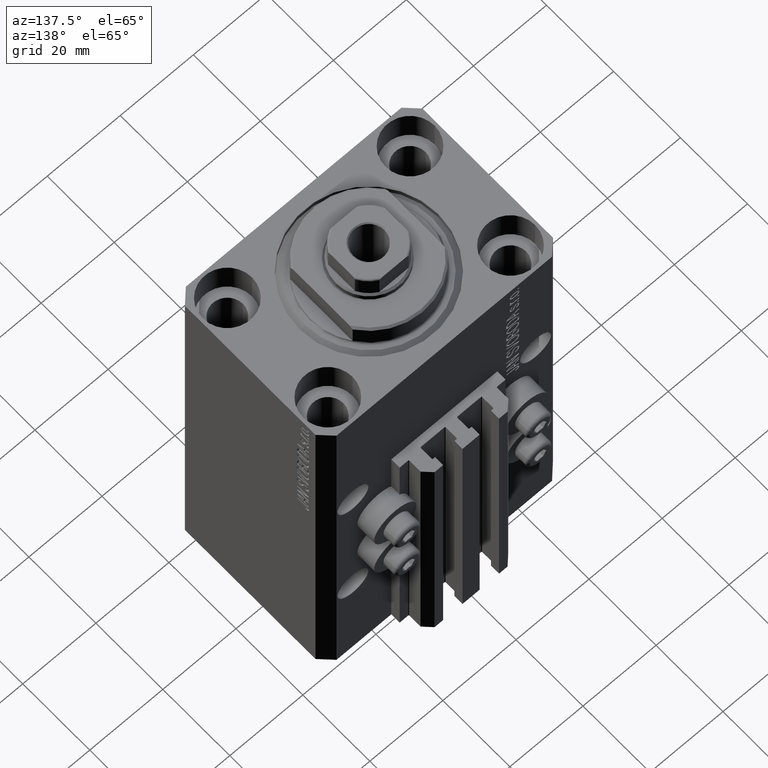
[diagram: clean part render]
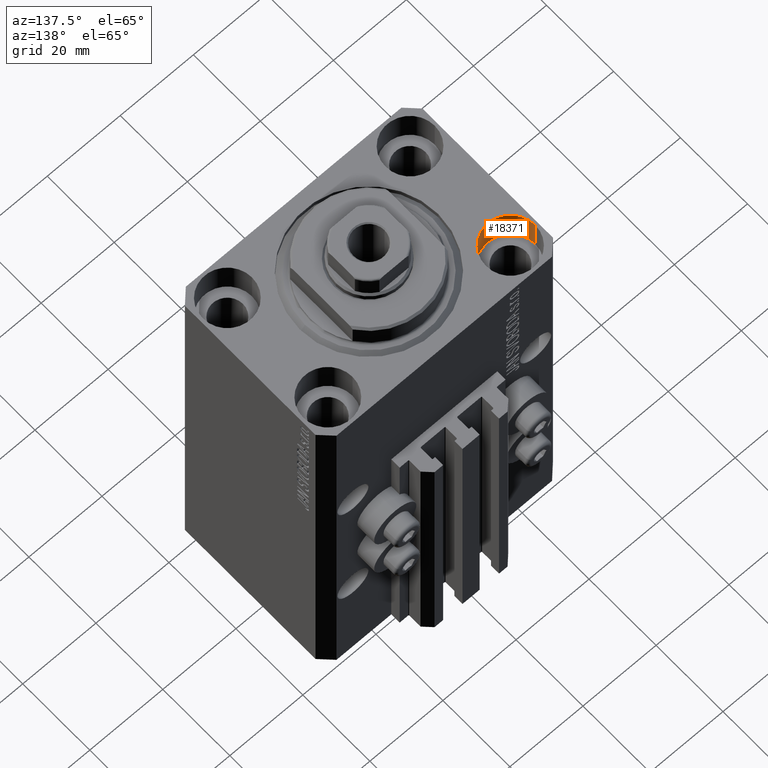
[diagram: same view with one face highlighted and labeled with its STEP entity id]
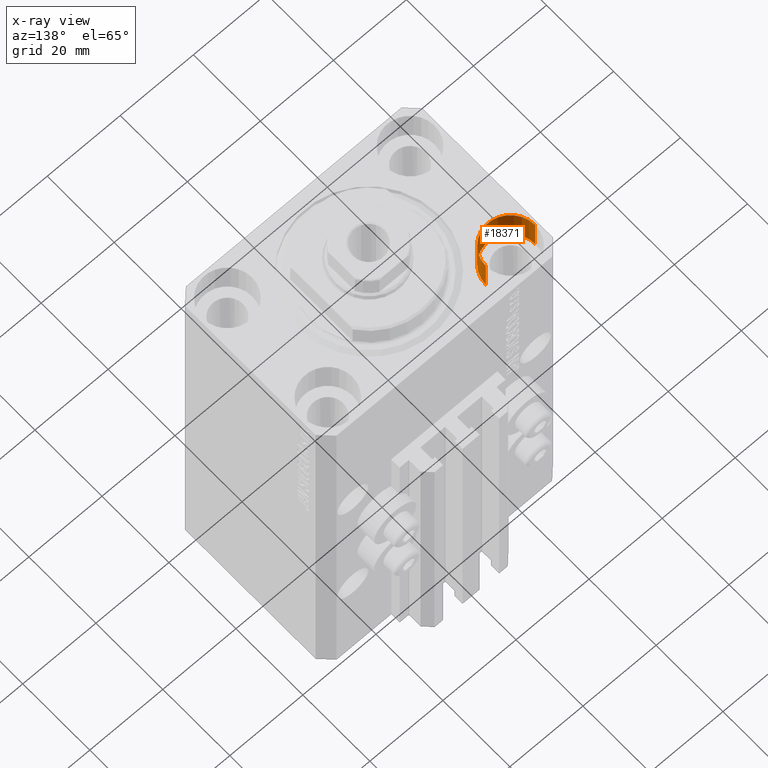
[diagram: x-ray of the same camera — body ghosted, the highlighted face saturated]
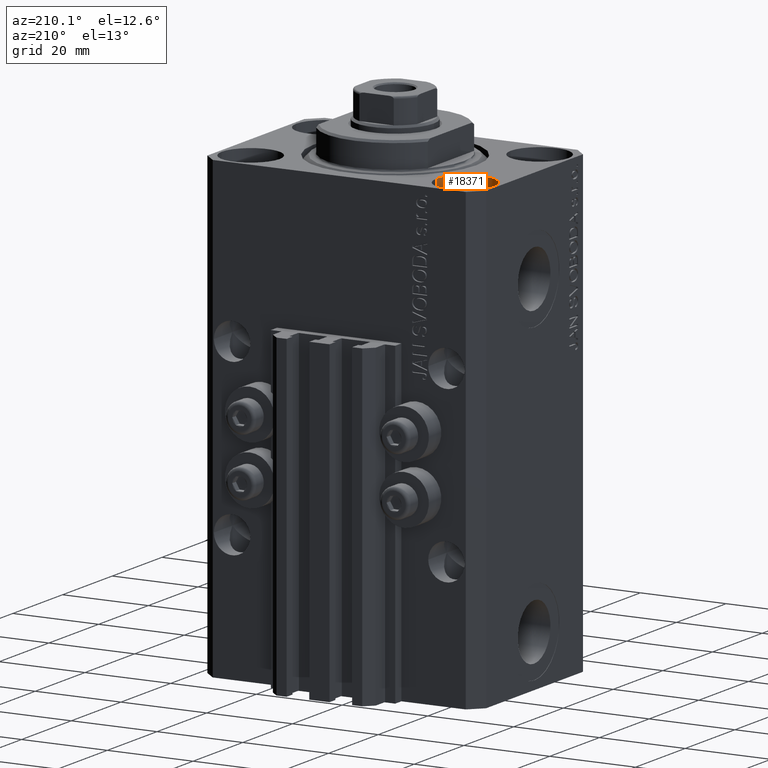
[diagram: same view with one face highlighted and labeled with its STEP entity id]
A machine part, auxiliary view. The second image highlights one B-rep face of the part: STEP entity #18371.
The next image is the same camera in x-ray: the body ghosted, the highlighted face saturated — about 0% of this face is hidden behind the body in this view.
A second angle (auxiliary view) of the same face is appended — the face is thin or edge-on in the first view.
In plain terms, the highlighted cylindrical surface (edge-blend (fillet) strip) has radius 6.75 mm, axis along (0, 0, 1).
Its self-contained STEP definition (entity closure, byte-faithful):
#352 = EDGE_CURVE ( 'NONE', #37245, #32735, #29258, .T. ) ;
#935 = CARTESIAN_POINT ( 'NONE',  ( -18.24999999997747224, 15.00000000000000000, -9.000000000000000000 ) ) ;
#1098 = DIRECTION ( 'NONE',  ( 1.000000000000000000, 0.000000000000000000, 0.000000000000000000 ) ) ;
#3047 = AXIS2_PLACEMENT_3D ( 'NONE', #17751, #6416, #6652 ) ;
#4753 = DIRECTION ( 'NONE',  ( -0.000000000000000000, -0.000000000000000000, 1.000000000000000000 ) ) ;
#5349 = VERTEX_POINT ( 'NONE', #8170 ) ;
#6416 = DIRECTION ( 'NONE',  ( 0.000000000000000000, 0.000000000000000000, 1.000000000000000000 ) ) ;
#6652 = DIRECTION ( 'NONE',  ( 1.000000000000000000, 0.000000000000000000, 0.000000000000000000 ) ) ;
#6666 = CARTESIAN_POINT ( 'NONE',  ( -18.24999999997747224, 15.00000000000000000, -9.000000000000000000 ) ) ;
#8170 = CARTESIAN_POINT ( 'NONE',  ( -31.75000000002253842, 15.00000000000000000, 0.000000000000000000 ) ) ;
#9248 = ORIENTED_EDGE ( 'NONE', *, *, #352, .F. ) ;
#10253 = ORIENTED_EDGE ( 'NONE', *, *, #31754, .T. ) ;
#10867 = ORIENTED_EDGE ( 'NONE', *, *, #26482, .T. ) ;
#12883 = VERTEX_POINT ( 'NONE', #18778 ) ;
#14137 = DIRECTION ( 'NONE',  ( -0.000000000000000000, -0.000000000000000000, 1.000000000000000000 ) ) ;
#17751 = CARTESIAN_POINT ( 'NONE',  ( -25.00000000000000355, 15.00000000000000000, -9.000000000000000000 ) ) ;
#18371 = ADVANCED_FACE ( 'NONE', ( #41186 ), #44582, .F. ) ;
#18778 = CARTESIAN_POINT ( 'NONE',  ( -18.24999999997747224, 15.00000000000000000, 0.000000000000000000 ) ) ;
#23319 = CARTESIAN_POINT ( 'NONE',  ( -31.75000000002253842, 15.00000000000000000, -9.000000000000000000 ) ) ;
#24019 = DIRECTION ( 'NONE',  ( 0.000000000000000000, 0.000000000000000000, 1.000000000000000000 ) ) ;
#26482 = EDGE_CURVE ( 'NONE', #37245, #5349, #34866, .T. ) ;
#29118 = VECTOR ( 'NONE', #14137, 1000.000000000000000 ) ;
#29258 = CIRCLE ( 'NONE', #3047, 6.750000000022533087 ) ;
#29396 = DIRECTION ( 'NONE',  ( 1.000000000000000000, 0.000000000000000000, 0.000000000000000000 ) ) ;
#31754 = EDGE_CURVE ( 'NONE', #5349, #12883, #41674, .T. ) ;
#32735 = VERTEX_POINT ( 'NONE', #935 ) ;
#34250 = EDGE_LOOP ( 'NONE', ( #9248, #10867, #10253, #44017 ) ) ;
#34866 = LINE ( 'NONE', #23319, #38486 ) ;
#37245 = VERTEX_POINT ( 'NONE', #44323 ) ;
#38482 = CARTESIAN_POINT ( 'NONE',  ( -25.00000000000000355, 15.00000000000000000, 0.000000000000000000 ) ) ;
#38486 = VECTOR ( 'NONE', #4753, 1000.000000000000000 ) ;
#40239 = DIRECTION ( 'NONE',  ( -0.000000000000000000, -0.000000000000000000, 1.000000000000000000 ) ) ;
#40411 = LINE ( 'NONE', #6666, #29118 ) ;
#40470 = CARTESIAN_POINT ( 'NONE',  ( -25.00000000000000355, 15.00000000000000000, -9.000000000000000000 ) ) ;
#41186 = FACE_OUTER_BOUND ( 'NONE', #34250, .T. ) ;
#41674 = CIRCLE ( 'NONE', #42469, 6.750000000022533087 ) ;
#42469 = AXIS2_PLACEMENT_3D ( 'NONE', #38482, #24019, #1098 ) ;
#44017 = ORIENTED_EDGE ( 'NONE', *, *, #44031, .F. ) ;
#44031 = EDGE_CURVE ( 'NONE', #32735, #12883, #40411, .T. ) ;
#44323 = CARTESIAN_POINT ( 'NONE',  ( -31.75000000002253842, 15.00000000000000000, -9.000000000000000000 ) ) ;
#44477 = AXIS2_PLACEMENT_3D ( 'NONE', #40470, #40239, #29396 ) ;
#44582 = CYLINDRICAL_SURFACE ( 'NONE', #44477, 6.750000000022533087 ) ;